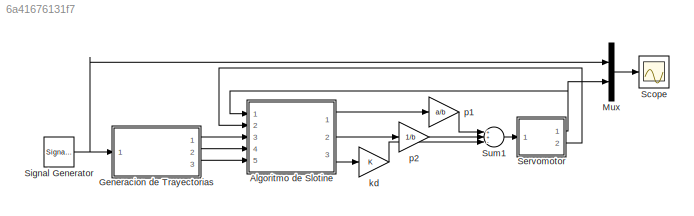
MODEL slx_6a41676131f7
KIND model
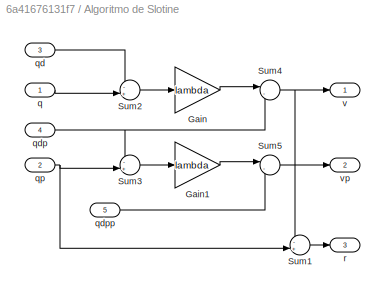
BLOCK [SubSystem] Algoritmo de Slotine
  Ports = [5, 3]
  RequestExecContextInheritance = off
BLOCK [Gain] Algoritmo de Slotine/Gain
  Gain = lambda
  OutDataTypeStr = Inherit: Inherit via internal rule
  ParamDataTypeStr = Inherit: Inherit via internal rule
  SaturateOnIntegerOverflow = off
BLOCK [Gain] Algoritmo de Slotine/Gain1
  Gain = lambda
  OutDataTypeStr = Inherit: Inherit via internal rule
  ParamDataTypeStr = Inherit: Inherit via internal rule
  SaturateOnIntegerOverflow = off
BLOCK [Sum] Algoritmo de Slotine/Sum1
  IconShape = round
  InputSameDT = off
  Inputs = -+|
  OutDataTypeStr = Inherit: Inherit via internal rule
  Ports = [2, 1]
  SaturateOnIntegerOverflow = off
BLOCK [Sum] Algoritmo de Slotine/Sum2
  IconShape = round
  InputSameDT = off
  Inputs = -+|
  OutDataTypeStr = Inherit: Inherit via internal rule
  Ports = [2, 1]
  SaturateOnIntegerOverflow = off
BLOCK [Sum] Algoritmo de Slotine/Sum3
  IconShape = round
  InputSameDT = off
  Inputs = -+|
  OutDataTypeStr = Inherit: Inherit via internal rule
  Ports = [2, 1]
  SaturateOnIntegerOverflow = off
BLOCK [Sum] Algoritmo de Slotine/Sum4
  IconShape = round
  InputSameDT = off
  Inputs = |-+
  OutDataTypeStr = Inherit: Inherit via internal rule
  Ports = [2, 1]
  SaturateOnIntegerOverflow = off
BLOCK [Sum] Algoritmo de Slotine/Sum5
  IconShape = round
  InputSameDT = off
  Inputs = |-+
  OutDataTypeStr = Inherit: Inherit via internal rule
  Ports = [2, 1]
  SaturateOnIntegerOverflow = off
BLOCK [Inport] Algoritmo de Slotine/q
  IconDisplay = Port number
BLOCK [Inport] Algoritmo de Slotine/qd
  IconDisplay = Port number
  Port = 3
BLOCK [Inport] Algoritmo de Slotine/qdp
  IconDisplay = Port number
  Port = 4
BLOCK [Inport] Algoritmo de Slotine/qdpp
  IconDisplay = Port number
  Port = 5
BLOCK [Inport] Algoritmo de Slotine/qp
  IconDisplay = Port number
  Port = 2
BLOCK [Outport] Algoritmo de Slotine/r
  IconDisplay = Port number
  Port = 3
BLOCK [Outport] Algoritmo de Slotine/v
  IconDisplay = Port number
BLOCK [Outport] Algoritmo de Slotine/vp
  IconDisplay = Port number
  Port = 2
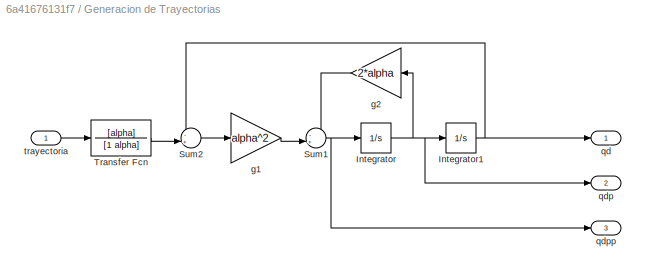
BLOCK [SubSystem] Generacion de Trayectorias
  Ports = [1, 3]
  RequestExecContextInheritance = off
BLOCK [Integrator] Generacion de Trayectorias/Integrator
  Ports = [1, 1]
BLOCK [Integrator] Generacion de Trayectorias/Integrator1
  Ports = [1, 1]
BLOCK [Sum] Generacion de Trayectorias/Sum1
  IconShape = round
  InputSameDT = off
  Inputs = -+|
  OutDataTypeStr = Inherit: Inherit via internal rule
  Ports = [2, 1]
  SaturateOnIntegerOverflow = off
BLOCK [Sum] Generacion de Trayectorias/Sum2
  IconShape = round
  InputSameDT = off
  Inputs = -+|
  OutDataTypeStr = Inherit: Inherit via internal rule
  Ports = [2, 1]
  SaturateOnIntegerOverflow = off
BLOCK [TransferFcn] Generacion de Trayectorias/Transfer Fcn
  Denominator = [1 alpha]
  Numerator = [alpha]
BLOCK [Gain] Generacion de Trayectorias/g1
  Gain = alpha^2
  OutDataTypeStr = Inherit: Inherit via internal rule
  ParamDataTypeStr = Inherit: Inherit via internal rule
  SaturateOnIntegerOverflow = off
BLOCK [Gain] Generacion de Trayectorias/g2
  Gain = 2*alpha
  OutDataTypeStr = Inherit: Inherit via internal rule
  ParamDataTypeStr = Inherit: Inherit via internal rule
  SaturateOnIntegerOverflow = off
BLOCK [Outport] Generacion de Trayectorias/qd
  IconDisplay = Port number
BLOCK [Outport] Generacion de Trayectorias/qdp
  IconDisplay = Port number
  Port = 2
BLOCK [Outport] Generacion de Trayectorias/qdpp
  IconDisplay = Port number
  Port = 3
BLOCK [Inport] Generacion de Trayectorias/trayectoria
  IconDisplay = Port number
BLOCK [Mux] Mux
  DisplayOption = bar
  Inputs = 2
  Ports = [2, 1]
BLOCK [Scope] Scope
  Floating = off
  NumInputPorts = 1
  Ports = [1]
  ShowLegends = off
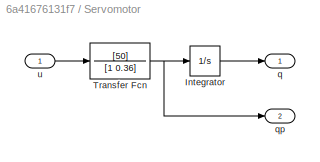
BLOCK [SubSystem] Servomotor
  Ports = [1, 2]
  RequestExecContextInheritance = off
BLOCK [Integrator] Servomotor/Integrator
  Ports = [1, 1]
BLOCK [TransferFcn] Servomotor/Transfer Fcn
  Denominator = [1 0.36]
  Numerator = [50]
BLOCK [Outport] Servomotor/q
  IconDisplay = Port number
BLOCK [Outport] Servomotor/qp
  IconDisplay = Port number
  Port = 2
BLOCK [Inport] Servomotor/u
  IconDisplay = Port number
BLOCK [SignalGenerator] Signal Generator
  Amplitude = 0.5
  Frequency = 0.25
  Ports = [0, 1]
BLOCK [Sum] Sum1
  IconShape = round
  InputSameDT = off
  Inputs = ++-
  OutDataTypeStr = Inherit: Inherit via internal rule
  Ports = [3, 1]
  SaturateOnIntegerOverflow = off
BLOCK [Gain] kd
  OutDataTypeStr = Inherit: Inherit via internal rule
  ParamDataTypeStr = Inherit: Inherit via internal rule
  SaturateOnIntegerOverflow = off
BLOCK [Gain] p1
  Gain = a/b
  OutDataTypeStr = Inherit: Inherit via internal rule
  ParamDataTypeStr = Inherit: Inherit via internal rule
  SaturateOnIntegerOverflow = off
BLOCK [Gain] p2
  Gain = 1/b
  OutDataTypeStr = Inherit: Inherit via internal rule
  ParamDataTypeStr = Inherit: Inherit via internal rule
  SaturateOnIntegerOverflow = off
LINE Algoritmo de Slotine/Gain1:1 -> Algoritmo de Slotine/Sum5:1
LINE Algoritmo de Slotine/Gain:1 -> Algoritmo de Slotine/Sum4:1
LINE Algoritmo de Slotine/Sum1:1 -> Algoritmo de Slotine/r:1
LINE Algoritmo de Slotine/Sum2:1 -> Algoritmo de Slotine/Gain:1
LINE Algoritmo de Slotine/Sum3:1 -> Algoritmo de Slotine/Gain1:1
NET Algoritmo de Slotine/Sum4:1 -> Algoritmo de Slotine/Sum1:1, Algoritmo de Slotine/v:1
LINE Algoritmo de Slotine/Sum5:1 -> Algoritmo de Slotine/vp:1
LINE Algoritmo de Slotine/q:1 -> Algoritmo de Slotine/Sum2:2
LINE Algoritmo de Slotine/qd:1 -> Algoritmo de Slotine/Sum2:1
NET Algoritmo de Slotine/qdp:1 -> Algoritmo de Slotine/Sum3:1, Algoritmo de Slotine/Sum4:2
LINE Algoritmo de Slotine/qdpp:1 -> Algoritmo de Slotine/Sum5:2
NET Algoritmo de Slotine/qp:1 -> Algoritmo de Slotine/Sum1:2, Algoritmo de Slotine/Sum3:2
LINE Algoritmo de Slotine:1 -> p1:1
LINE Algoritmo de Slotine:2 -> p2:1
LINE Algoritmo de Slotine:3 -> kd:1
NET Generacion de Trayectorias/Integrator1:1 -> Generacion de Trayectorias/Sum2:1, Generacion de Trayectorias/qd:1
NET Generacion de Trayectorias/Integrator:1 -> Generacion de Trayectorias/Integrator1:1, Generacion de Trayectorias/g2:1, Generacion de Trayectorias/qdp:1
NET Generacion de Trayectorias/Sum1:1 -> Generacion de Trayectorias/Integrator:1, Generacion de Trayectorias/qdpp:1
LINE Generacion de Trayectorias/Sum2:1 -> Generacion de Trayectorias/g1:1
LINE Generacion de Trayectorias/Transfer Fcn:1 -> Generacion de Trayectorias/Sum2:2
LINE Generacion de Trayectorias/g1:1 -> Generacion de Trayectorias/Sum1:2
LINE Generacion de Trayectorias/g2:1 -> Generacion de Trayectorias/Sum1:1
LINE Generacion de Trayectorias/trayectoria:1 -> Generacion de Trayectorias/Transfer Fcn:1
LINE Generacion de Trayectorias:1 -> Algoritmo de Slotine:3
LINE Generacion de Trayectorias:2 -> Algoritmo de Slotine:4
LINE Generacion de Trayectorias:3 -> Algoritmo de Slotine:5
LINE Mux:1 -> Scope:1
LINE Servomotor/Integrator:1 -> Servomotor/q:1
NET Servomotor/Transfer Fcn:1 -> Servomotor/Integrator:1, Servomotor/qp:1
LINE Servomotor/u:1 -> Servomotor/Transfer Fcn:1
NET Servomotor:1 -> Algoritmo de Slotine:1, Mux:2
LINE Servomotor:2 -> Algoritmo de Slotine:2
NET Signal Generator:1 -> Generacion de Trayectorias:1, Mux:1
LINE Sum1:1 -> Servomotor:1
LINE kd:1 -> Sum1:3
LINE p1:1 -> Sum1:1
LINE p2:1 -> Sum1:2
note: NET lines group one-source signal fan-out (src -> all destinations, sorted); 1:1 wires keep LINE
